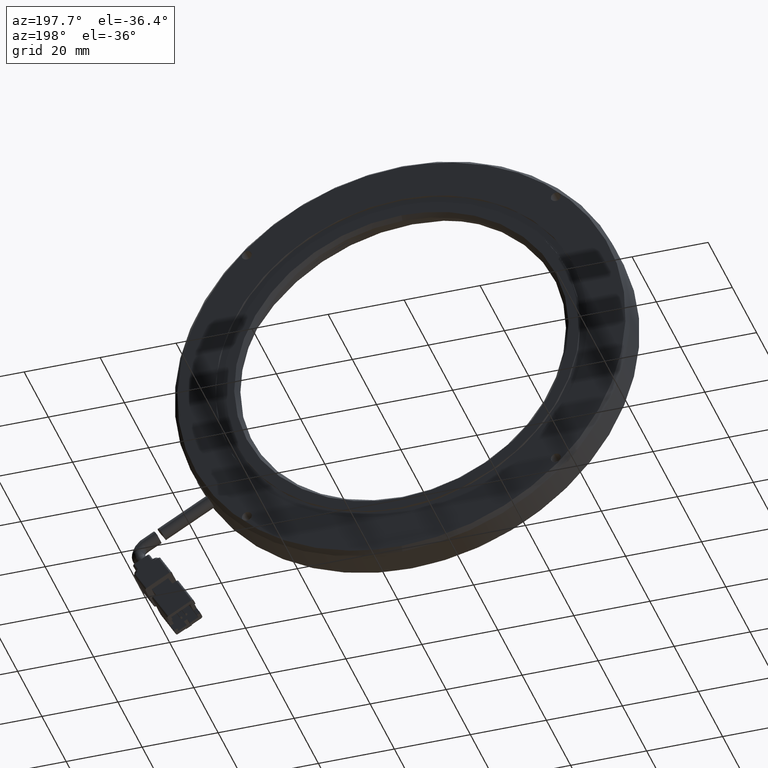
[diagram: clean part render]
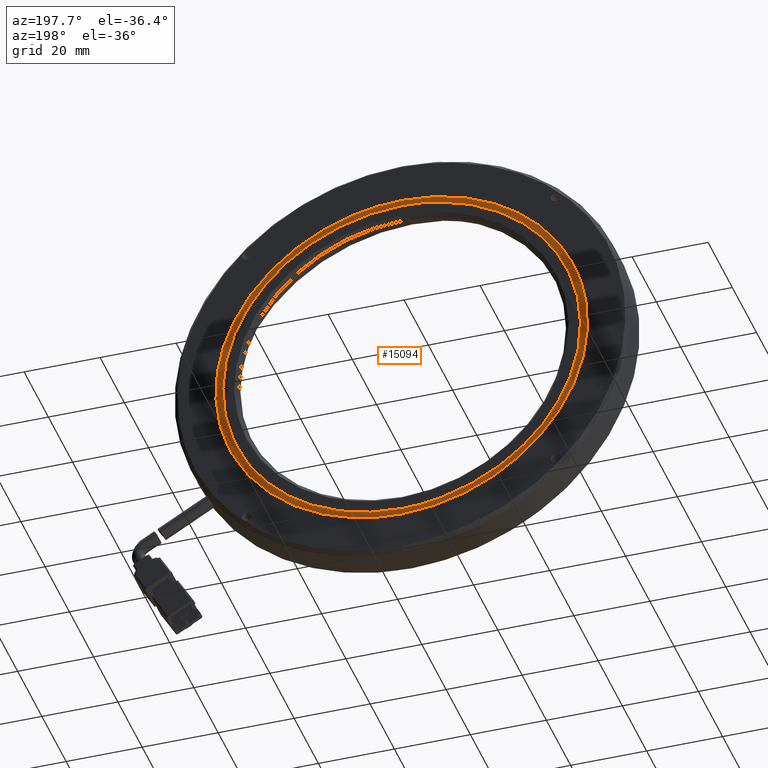
[diagram: same view with one face highlighted and labeled with its STEP entity id]
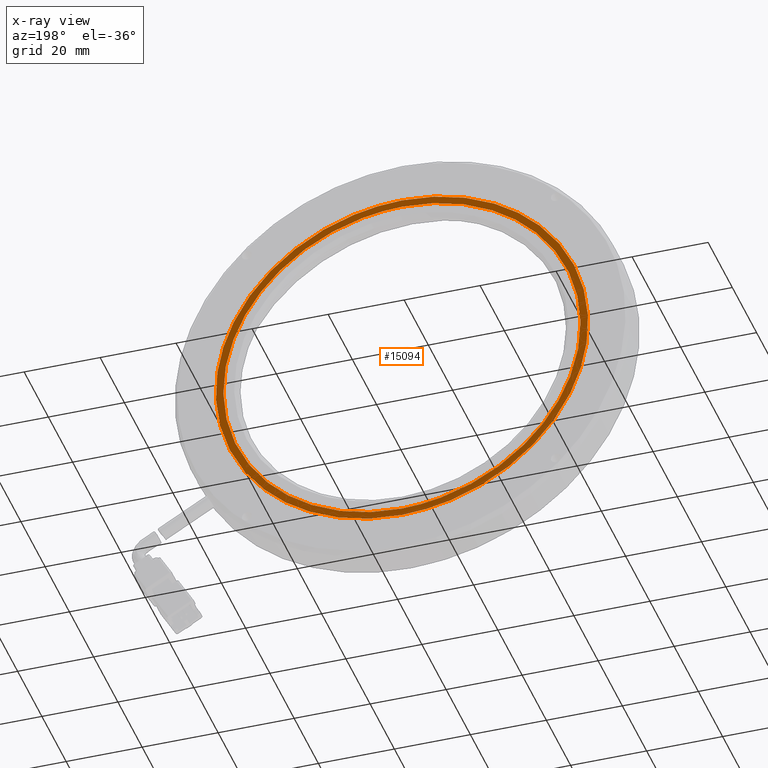
[diagram: x-ray of the same camera — body ghosted, the highlighted face saturated]
A machine part, auxiliary view. The second image highlights one B-rep face of the part: STEP entity #15094.
The next image is the same camera in x-ray: the body ghosted, the highlighted face saturated — about 0% of this face is hidden behind the body in this view.
In plain terms, the highlighted planar face has unit normal (0, 1, 0).
Its self-contained STEP definition (entity closure, byte-faithful):
#61 = CARTESIAN_POINT ( 'NONE',  ( 40.66767784981356500, 27.51889671361306000, 46.49737912490386500 ) ) ;
#192 = CARTESIAN_POINT ( 'NONE',  ( 9.456277853329057200, 27.51889671362000600, 3.077915830590420400 ) ) ;
#276 = CARTESIAN_POINT ( 'NONE',  ( 7.456245109548992100, 27.51889671361305600, -3.207042500524190500 ) ) ;
#402 = CARTESIAN_POINT ( 'NONE',  ( 41.31373469631389400, 27.51889671362000200, -44.60023567383711200 ) ) ;
#499 = CARTESIAN_POINT ( 'NONE',  ( 43.75139925258415000, 27.51889671361306000, -47.43281578560360100 ) ) ;
#546 = CARTESIAN_POINT ( 'NONE',  ( 72.24481236927884700, 27.51889671361306000, -46.49737912490645200 ) ) ;
#765 = CARTESIAN_POINT ( 'NONE',  ( 105.4562451095509800, 27.51889671361306000, 3.207042500524605300 ) ) ;
#983 = CARTESIAN_POINT ( 'NONE',  ( 69.16109096650770000, 27.51889671361306000, 47.43281578560577600 ) ) ;
#2592 = AXIS2_PLACEMENT_3D ( 'NONE', #50738, #10971, #26070 ) ;
#4429 = CARTESIAN_POINT ( 'NONE',  ( 80.00880659870372800, 27.51889671361999800, -40.78906153553690200 ) ) ;
#4642 = CARTESIAN_POINT ( 'NONE',  ( 101.9527235095320100, 27.51889671361999800, 12.18799409577771300 ) ) ;
#4866 = CARTESIAN_POINT ( 'NONE',  ( 62.59476272198268300, 27.51889671361999800, 46.62280358932043400 ) ) ;
#4962 = CARTESIAN_POINT ( 'NONE',  ( 35.62645694168345800, 27.51889671362000600, 42.24448809525107900 ) ) ;
#5059 = CARTESIAN_POINT ( 'NONE',  ( 31.89986207616116300, 27.51889671361306000, 42.52374835215917400 ) ) ;
#5181 = CARTESIAN_POINT ( 'NONE',  ( 9.758907151604930200, 27.51889671362000600, -6.150496173562206800 ) ) ;
#5276 = CARTESIAN_POINT ( 'NONE',  ( 9.023429323937220300, 27.51889671361305300, -12.70484585693154700 ) ) ;
#5395 = CARTESIAN_POINT ( 'NONE',  ( 48.79636742879720400, 27.51889671362001300, -46.39715839415502800 ) ) ;
#5476 = CARTESIAN_POINT ( 'NONE',  ( 53.24920260899038000, 27.51889671361305600, -48.99999999999867800 ) ) ;
#5510 = CARTESIAN_POINT ( 'NONE',  ( 81.01262814293298200, 27.51889671361306000, -42.52374835216255600 ) ) ;
#5744 = CARTESIAN_POINT ( 'NONE',  ( 103.8890608951623300, 27.51889671361306000, 12.70484585693319200 ) ) ;
#5957 = CARTESIAN_POINT ( 'NONE',  ( 59.66328761009992100, 27.51889671361306400, 48.99999999999933900 ) ) ;
#8734 = ORIENTED_EDGE ( 'NONE', *, *, #61319, .F. ) ;
#9426 = CARTESIAN_POINT ( 'NONE',  ( 87.51380188356937100, 27.51889671362000600, -35.41043435034634300 ) ) ;
#9666 = CARTESIAN_POINT ( 'NONE',  ( 98.70076174146440500, 27.51889671362000200, 20.82972782865672900 ) ) ;
#9871 = CARTESIAN_POINT ( 'NONE',  ( 57.99573682295272200, 27.51889671361999800, 46.99999999999999300 ) ) ;
#9965 = CARTESIAN_POINT ( 'NONE',  ( 27.78520469461282300, 27.51889671362000900, 37.36908202073644200 ) ) ;
#10053 = CARTESIAN_POINT ( 'NONE',  ( 24.07573433110353600, 27.51889671361305300, 36.91595377783402700 ) ) ;
#10175 = CARTESIAN_POINT ( 'NONE',  ( 11.85608568540133200, 27.51889671362000600, -15.14251481371481500 ) ) ;
#10266 = CARTESIAN_POINT ( 'NONE',  ( 12.41343004833678900, 27.51889671361306400, -21.71440911201678500 ) ) ;
#10391 = CARTESIAN_POINT ( 'NONE',  ( 53.38115153097748300, 27.51889671362000200, -46.92456071786440900 ) ) ;
#10527 = CARTESIAN_POINT ( 'NONE',  ( 88.83675588799233900, 27.51889671361306000, -36.91595377783767200 ) ) ;
#10742 = CARTESIAN_POINT ( 'NONE',  ( 100.4990601707618900, 27.51889671361306000, 21.71440911201941000 ) ) ;
#10971 = DIRECTION ( 'NONE',  ( 0.0000000000000000000, 1.000000000000000000, 0.0000000000000000000 ) ) ;
#11594 = FACE_OUTER_BOUND ( 'NONE', #43911, .T. ) ;
#14449 = CARTESIAN_POINT ( 'NONE',  ( 93.82527267907866500, 27.51889671362000600, -28.67100403106977800 ) ) ;
#14653 = CARTESIAN_POINT ( 'NONE',  ( 93.82536689048586700, 27.51889671361999800, 28.67098680203242400 ) ) ;
#14966 = CARTESIAN_POINT ( 'NONE',  ( 21.04576445201745800, 27.51889671362000200, 31.05760308121538700 ) ) ;
#15055 = CARTESIAN_POINT ( 'NONE',  ( 17.49597145606181000, 27.51889671361306000, 29.88949980253233500 ) ) ;
#15094 = ADVANCED_FACE ( 'NONE', ( #49492, #11594 ), #45803, .T. ) ;
#15173 = CARTESIAN_POINT ( 'NONE',  ( 15.66722333363150500, 27.51889671362000600, -23.55261510129537300 ) ) ;
#15275 = CARTESIAN_POINT ( 'NONE',  ( 17.49597145604328600, 27.51889671361306000, -29.88949980250820100 ) ) ;
#15313 = CARTESIAN_POINT ( 'NONE',  ( 59.66328761006953800, 27.51889671361306000, -49.00000000000132200 ) ) ;
#15397 = CARTESIAN_POINT ( 'NONE',  ( 56.45624510954842600, 27.51889671361583800, -47.00000000000000000 ) ) ;
#15522 = CARTESIAN_POINT ( 'NONE',  ( 95.41651876303562600, 27.51889671361306000, -29.88949980253570300 ) ) ;
#15737 = EDGE_CURVE ( 'NONE', #61275, #27216, #45737, .T. ) ;
#15745 = CARTESIAN_POINT ( 'NONE',  ( 95.41651876305414200, 27.51889671361306000, 29.88949980251154400 ) ) ;
#17045 = EDGE_CURVE ( 'NONE', #21459, #44284, #47286, .T. ) ;
#17073 = ORIENTED_EDGE ( 'NONE', *, *, #15737, .F. ) ;
#19404 = CARTESIAN_POINT ( 'NONE',  ( 98.70067270147217200, 27.51889671362001300, -20.82976310675847400 ) ) ;
#19626 = CARTESIAN_POINT ( 'NONE',  ( 87.51389764598131600, 27.51889671362000200, 35.41043583190586500 ) ) ;
#19793 = CARTESIAN_POINT ( 'NONE',  ( 50.04223940892697400, 27.51889671361306000, 48.68414169390934600 ) ) ;
#19919 = CARTESIAN_POINT ( 'NONE',  ( 15.66712912251664800, 27.51889671362000200, 23.55259787254638900 ) ) ;
#20013 = CARTESIAN_POINT ( 'NONE',  ( 12.41343004835024100, 27.51889671361306700, 21.71440911204407700 ) ) ;
#20131 = CARTESIAN_POINT ( 'NONE',  ( 21.04586021462260000, 27.51889671362000600, -31.05760159976756500 ) ) ;
#20219 = CARTESIAN_POINT ( 'NONE',  ( 24.07573433108066400, 27.51889671361305300, -36.91595377781397500 ) ) ;
#20483 = CARTESIAN_POINT ( 'NONE',  ( 100.4990601707484600, 27.51889671361306000, -21.71440911204670600 ) ) ;
#20699 = CARTESIAN_POINT ( 'NONE',  ( 88.83675588801521900, 27.51889671361306000, 36.91595377781762700 ) ) ;
#21459 = VERTEX_POINT ( 'NONE', #48501 ) ;
#22732 = CARTESIAN_POINT ( 'NONE',  ( 56.45624510954842600, 27.51889671361583800, -47.00000000000000000 ) ) ;
#24305 = CARTESIAN_POINT ( 'NONE',  ( 101.9526430628878600, 27.51889671362000600, -12.18804606646948600 ) ) ;
#24511 = CARTESIAN_POINT ( 'NONE',  ( 80.00890023196265600, 27.51889671361999800, 40.78908167101518200 ) ) ;
#24700 = CARTESIAN_POINT ( 'NONE',  ( 56.45624510956227500, 27.51889671361583800, 49.00000000000000000 ) ) ;
#24823 = CARTESIAN_POINT ( 'NONE',  ( 11.85600943564175000, 27.51889671362001300, 15.14251041302163800 ) ) ;
#24914 = CARTESIAN_POINT ( 'NONE',  ( 9.023429323945098400, 27.51889671361306000, 12.70484585696094000 ) ) ;
#25038 = CARTESIAN_POINT ( 'NONE',  ( 27.78529832840038700, 27.51889671362000600, -37.36906188559198200 ) ) ;
#25134 = CARTESIAN_POINT ( 'NONE',  ( 31.89986207613482700, 27.51889671361306400, -42.52374835214396100 ) ) ;
#25392 = CARTESIAN_POINT ( 'NONE',  ( 103.8890608951544900, 27.51889671361306000, -12.70484585696259000 ) ) ;
#25608 = CARTESIAN_POINT ( 'NONE',  ( 81.01262814295930100, 27.51889671361306000, 42.52374835214733700 ) ) ;
#26070 = DIRECTION ( 'NONE',  ( 0.0000000000000000000, 0.0000000000000000000, -1.000000000000000000 ) ) ;
#27216 = VERTEX_POINT ( 'NONE', #55322 ) ;
#29077 = CARTESIAN_POINT ( 'NONE',  ( 68.64430395200231800, 27.51889671362000600, -45.49646218333978700 ) ) ;
#29286 = CARTESIAN_POINT ( 'NONE',  ( 103.4562123657709400, 27.51889671362000600, -3.077915830238200400 ) ) ;
#29494 = CARTESIAN_POINT ( 'NONE',  ( 71.59878749029857700, 27.51889671362000200, 44.60022597617826500 ) ) ;
#29588 = CARTESIAN_POINT ( 'NONE',  ( 56.45624510956202600, 27.51889671361583800, 47.00000000000000000 ) ) ;
#29694 = CARTESIAN_POINT ( 'NONE',  ( 43.75139925261356000, 27.51889671361306400, 47.43281578561143900 ) ) ;
#29815 = CARTESIAN_POINT ( 'NONE',  ( 9.758826704821494500, 27.51889671362000900, 6.150444202228658100 ) ) ;
#29907 = CARTESIAN_POINT ( 'NONE',  ( 7.456245109550983400, 27.51889671361306000, 3.207042500554549800 ) ) ;
#30038 = CARTESIAN_POINT ( 'NONE',  ( 35.62651288046540500, 27.51889671362000600, -42.24444038222292600 ) ) ;
#30050 = B_SPLINE_CURVE_WITH_KNOTS ( 'NONE', 3,
 ( #44914, #15313, #59811, #30170, #546, #35169, #5510, #40132, #10527, #45140, #15522, #50086, #20483, #55088, #25392, #60036, #30401, #765, #35394, #5744, #40347, #10742, #45357, #15745, #50288, #20699, #55307, #25608, #60248, #30619, #983, #35588, #5957, #40580 ),
 .UNSPECIFIED., .F., .F.,
 ( 4, 2, 2, 2, 2, 2, 2, 2, 2, 2, 2, 2, 2, 2, 2, 2, 4 ),
 ( 0.0000000000000000000, 0.06250000000000000000, 0.1250000000000000000, 0.1875000000000000000, 0.2500000000000000000, 0.3125000000000000000, 0.3750000000000000000, 0.4375000000000000000, 0.5000000000000000000, 0.5625000000000000000, 0.6250000000000000000, 0.6875000000000000000, 0.7500000000000000000, 0.8125000000000000000, 0.8750000000000000000, 0.9375000000000000000, 1.000000000000000000 ),
 .UNSPECIFIED. ) ;
#30132 = CARTESIAN_POINT ( 'NONE',  ( 40.66767784978473800, 27.51889671361306400, -46.49737912489408800 ) ) ;
#30170 = CARTESIAN_POINT ( 'NONE',  ( 69.16109096647828400, 27.51889671361306000, -47.43281578561365600 ) ) ;
#30401 = CARTESIAN_POINT ( 'NONE',  ( 105.4562451095489900, 27.51889671361306000, -3.207042500554977000 ) ) ;
#30619 = CARTESIAN_POINT ( 'NONE',  ( 72.24481236930765200, 27.51889671361306000, 46.49737912489665300 ) ) ;
#33851 = EDGE_LOOP ( 'NONE', ( #39241, #36175 ) ) ;
#34073 = CARTESIAN_POINT ( 'NONE',  ( 77.28603327703383700, 27.51889671361999800, -42.24448809541323900 ) ) ;
#34295 = CARTESIAN_POINT ( 'NONE',  ( 103.1535830674770600, 27.51889671362000600, 6.150496173710954500 ) ) ;
#34503 = CARTESIAN_POINT ( 'NONE',  ( 64.11612279058660100, 27.51889671361999500, 46.39715839412770000 ) ) ;
#34601 = CARTESIAN_POINT ( 'NONE',  ( 41.31379063511376900, 27.51889671362000600, 44.60018796081634900 ) ) ;
#34697 = CARTESIAN_POINT ( 'NONE',  ( 34.74183599752871000, 27.51889671361305600, 44.04281506121096600 ) ) ;
#34815 = CARTESIAN_POINT ( 'NONE',  ( 9.456212365770934300, 27.51889671362000200, -3.077915830580750800 ) ) ;
#34911 = CARTESIAN_POINT ( 'NONE',  ( 7.772103415639984200, 27.51889671361306000, -6.414005700617982700 ) ) ;
#35032 = CARTESIAN_POINT ( 'NONE',  ( 44.26826506677975500, 27.51889671362000900, -45.49640774854508200 ) ) ;
#35127 = CARTESIAN_POINT ( 'NONE',  ( 50.04223940889683300, 27.51889671361306000, -48.68414169390537400 ) ) ;
#35169 = CARTESIAN_POINT ( 'NONE',  ( 78.17065422156488800, 27.51889671361306400, -44.04281506121417800 ) ) ;
#35394 = CARTESIAN_POINT ( 'NONE',  ( 105.1403868034599300, 27.51889671361306000, 6.414005700618829100 ) ) ;
#35588 = CARTESIAN_POINT ( 'NONE',  ( 62.87025081019398700, 27.51889671361306000, 48.68414169390661100 ) ) ;
#36175 = ORIENTED_EDGE ( 'NONE', *, *, #47440, .T. ) ;
#38820 = CARTESIAN_POINT ( 'NONE',  ( 56.45624510954842600, 27.51889671361583800, -47.00000000000000000 ) ) ;
#39038 = CARTESIAN_POINT ( 'NONE',  ( 85.12728552420962600, 27.51889671362000200, -37.36908202092188000 ) ) ;
#39241 = ORIENTED_EDGE ( 'NONE', *, *, #17045, .T. ) ;
#39258 = CARTESIAN_POINT ( 'NONE',  ( 101.0564045337067500, 27.51889671362000600, 15.14251481363702800 ) ) ;
#39466 = CARTESIAN_POINT ( 'NONE',  ( 59.53133868811592300, 27.51889671362000200, 46.92456071786409000 ) ) ;
#39556 = CARTESIAN_POINT ( 'NONE',  ( 32.90368362065767400, 27.51889671362000600, 40.78906153571158200 ) ) ;
#39656 = CARTESIAN_POINT ( 'NONE',  ( 26.56674530703778500, 27.51889671361306000, 38.96027365350362700 ) ) ;
#39779 = CARTESIAN_POINT ( 'NONE',  ( 10.95976670958973300, 27.51889671362000200, -12.18799409594552700 ) ) ;
#39866 = CARTESIAN_POINT ( 'NONE',  ( 9.958865984644525300, 27.51889671361306000, -15.78856725973168000 ) ) ;
#39996 = CARTESIAN_POINT ( 'NONE',  ( 50.31772749714320300, 27.51889671361999800, -46.62280358932205400 ) ) ;
#40098 = CARTESIAN_POINT ( 'NONE',  ( 56.45624510954405700, 27.51889671361583800, -49.00000000000000700 ) ) ;
#40132 = CARTESIAN_POINT ( 'NONE',  ( 86.34574491205752600, 27.51889671361306400, -38.96027365350723700 ) ) ;
#40347 = CARTESIAN_POINT ( 'NONE',  ( 102.9536242344548100, 27.51889671361306000, 15.78856725973365700 ) ) ;
#40580 = CARTESIAN_POINT ( 'NONE',  ( 56.45624510956227500, 27.51889671361583800, 49.00000000000000000 ) ) ;
#43805 = CARTESIAN_POINT ( 'NONE',  ( 59.53452685473021700, 27.51889671362000900, -47.00000000000000700 ) ) ;
#43911 = EDGE_LOOP ( 'NONE', ( #17073, #8734 ) ) ;
#44027 = CARTESIAN_POINT ( 'NONE',  ( 91.86672576704202700, 27.51889671362000200, -31.05760308121315600 ) ) ;
#44249 = CARTESIAN_POINT ( 'NONE',  ( 97.24526688506752200, 27.51889671362000600, 23.55261510178897700 ) ) ;
#44284 = VERTEX_POINT ( 'NONE', #22732 ) ;
#44353 = CARTESIAN_POINT ( 'NONE',  ( 50.30581368282661000, 27.51889671362000200, 46.69735417465718500 ) ) ;
#44470 = CARTESIAN_POINT ( 'NONE',  ( 56.45624510956202600, 27.51889671361583800, 47.00000000000000000 ) ) ;
#44571 = CARTESIAN_POINT ( 'NONE',  ( 25.39868833555738400, 27.51889671362001300, 35.41043435033039100 ) ) ;
#44658 = CARTESIAN_POINT ( 'NONE',  ( 19.54029133173267100, 27.51889671361306400, 32.38051077846551400 ) ) ;
#44699 = CARTESIAN_POINT ( 'NONE',  ( 56.45624510956227500, 27.51889671361583800, 49.00000000000000000 ) ) ;
#44779 = CARTESIAN_POINT ( 'NONE',  ( 14.21172847763491600, 27.51889671362000200, -20.82972782859687700 ) ) ;
#44876 = CARTESIAN_POINT ( 'NONE',  ( 13.93249675738829500, 27.51889671361306000, -24.55638303338444600 ) ) ;
#44914 = CARTESIAN_POINT ( 'NONE',  ( 56.45624510954405700, 27.51889671361583800, -49.00000000000000700 ) ) ;
#44994 = CARTESIAN_POINT ( 'NONE',  ( 54.91675339614072000, 27.51889671362000200, -47.00000000000001400 ) ) ;
#45140 = CARTESIAN_POINT ( 'NONE',  ( 93.37219888736424900, 27.51889671361306400, -32.38051077846901600 ) ) ;
#45357 = CARTESIAN_POINT ( 'NONE',  ( 98.97999346171003800, 27.51889671361306000, 24.55638303338737000 ) ) ;
#45737 = B_SPLINE_CURVE_WITH_KNOTS ( 'NONE', 3,
 ( #24700, #54402, #19793, #29694, #61, #34697, #5059, #39656, #10053, #44658, #15055, #49624, #20013, #54618, #24914, #59581, #29907, #276, #34911, #5276, #39866, #10266, #44876, #15275, #49827, #20219, #54836, #25134, #59773, #30132, #499, #35127, #5476, #40098 ),
 .UNSPECIFIED., .F., .F.,
 ( 4, 2, 2, 2, 2, 2, 2, 2, 2, 2, 2, 2, 2, 2, 2, 2, 4 ),
 ( 0.0000000000000000000, 0.06249999999999990300, 0.1249999999999998100, 0.1874999999999997200, 0.2499999999999996100, 0.3124999999999996100, 0.3749999999999995600, 0.4374999999999995600, 0.4999999999999995600, 0.5624999999999995600, 0.6249999999999994400, 0.6874999999999994400, 0.7499999999999994400, 0.8124999999999996700, 0.8749999999999997800, 0.9374999999999998900, 1.000000000000000000 ),
 .UNSPECIFIED. ) ;
#45803 = PLANE ( 'NONE',  #2592 ) ;
#47286 = B_SPLINE_CURVE_WITH_KNOTS ( 'NONE', 3,
 ( #29588, #54314, #44353, #64241, #34601, #4962, #39556, #9965, #44571, #14966, #49539, #19919, #54530, #24823, #59478, #29815, #192, #34815, #5181, #39779, #10175, #44779, #15173, #49738, #20131, #54748, #25038, #59690, #30038, #402, #35032, #5395, #39996, #10391, #44994, #15397 ),
 .UNSPECIFIED., .F., .F.,
 ( 4, 2, 2, 2, 2, 2, 2, 2, 2, 2, 2, 2, 2, 2, 2, 2, 2, 4 ),
 ( 0.0000000000000000000, 0.06249999999999990300, 0.1249999999999998100, 0.1874999999999997200, 0.2499999999999996700, 0.3124999999999996700, 0.3749999999999996700, 0.4374999999999997200, 0.4999999999999996700, 0.5624999999999996700, 0.6249999999999996700, 0.6874999999999996700, 0.7499999999999996700, 0.8124999999999997800, 0.8749999999999997800, 0.9374999999999997800, 0.9687499999999997800, 1.000000000000000000 ),
 .UNSPECIFIED. ) ;
#47440 = EDGE_CURVE ( 'NONE', #44284, #21459, #48235, .T. ) ;
#48235 = B_SPLINE_CURVE_WITH_KNOTS ( 'NONE', 3,
 ( #38820, #43805, #58747, #29077, #63700, #34073, #4429, #39038, #9426, #44027, #14449, #48985, #19404, #54017, #24305, #58952, #29286, #63922, #34295, #4642, #39258, #9666, #44249, #14653, #49216, #19626, #54212, #24511, #59166, #29494, #64140, #34503, #4866, #39466, #9871, #44470 ),
 .UNSPECIFIED., .F., .F.,
 ( 4, 2, 2, 2, 2, 2, 2, 2, 2, 2, 2, 2, 2, 2, 2, 2, 2, 4 ),
 ( 0.0000000000000000000, 0.06249999999999998600, 0.1249999999999999700, 0.1874999999999999400, 0.2499999999999999400, 0.3124999999999999400, 0.3749999999999998900, 0.4374999999999998900, 0.4999999999999998900, 0.5624999999999998900, 0.6249999999999998900, 0.6874999999999998900, 0.7499999999999997800, 0.8124999999999997800, 0.8749999999999997800, 0.9374999999999997800, 0.9687499999999998900, 1.000000000000000000 ),
 .UNSPECIFIED. ) ;
#48501 = CARTESIAN_POINT ( 'NONE',  ( 56.45624510956202600, 27.51889671361583800, 47.00000000000000000 ) ) ;
#48985 = CARTESIAN_POINT ( 'NONE',  ( 97.24536109644233800, 27.51889671362000200, -23.55259787280010300 ) ) ;
#49216 = CARTESIAN_POINT ( 'NONE',  ( 91.86663000467129300, 27.51889671362000600, 31.05760159961245000 ) ) ;
#49492 = FACE_BOUND ( 'NONE', #33851, .T. ) ;
#49539 = CARTESIAN_POINT ( 'NONE',  ( 19.08721754015151000, 27.51889671362000600, 28.67100403130736200 ) ) ;
#49624 = CARTESIAN_POINT ( 'NONE',  ( 13.93249675740351500, 27.51889671361306400, 24.55638303341079600 ) ) ;
#49738 = CARTESIAN_POINT ( 'NONE',  ( 19.08712332902588200, 27.51889671362000200, -28.67098680254222400 ) ) ;
#49827 = CARTESIAN_POINT ( 'NONE',  ( 19.54029133171260900, 27.51889671361306000, -32.38051077844264800 ) ) ;
#50086 = CARTESIAN_POINT ( 'NONE',  ( 98.97999346169478900, 27.51889671361306400, -24.55638303341373400 ) ) ;
#50288 = CARTESIAN_POINT ( 'NONE',  ( 93.37219888738432900, 27.51889671361306000, 32.38051077844615100 ) ) ;
#50738 = CARTESIAN_POINT ( 'NONE',  ( 107.4162171813000300, 27.51889671362000200, 50.96000000000000800 ) ) ;
#54017 = CARTESIAN_POINT ( 'NONE',  ( 101.0564935736767300, 27.51889671362000200, -15.14247953558911400 ) ) ;
#54212 = CARTESIAN_POINT ( 'NONE',  ( 85.12719189099912900, 27.51889671362000600, 37.36906188541124900 ) ) ;
#54314 = CARTESIAN_POINT ( 'NONE',  ( 53.37796336458985300, 27.51889671362000600, 47.00000000000000000 ) ) ;
#54402 = CARTESIAN_POINT ( 'NONE',  ( 53.24920260902074900, 27.51889671361306000, 49.00000000000067500 ) ) ;
#54530 = CARTESIAN_POINT ( 'NONE',  ( 14.21180472740193100, 27.51889671362000900, 20.82973222930801400 ) ) ;
#54618 = CARTESIAN_POINT ( 'NONE',  ( 9.958865984654302400, 27.51889671361306000, 15.78856725976048700 ) ) ;
#54748 = CARTESIAN_POINT ( 'NONE',  ( 25.39859257293850800, 27.51889671362000600, -35.41043583176452400 ) ) ;
#54836 = CARTESIAN_POINT ( 'NONE',  ( 26.56674530701363700, 27.51889671361305300, -38.96027365348509600 ) ) ;
#55088 = CARTESIAN_POINT ( 'NONE',  ( 102.9536242344450300, 27.51889671361306400, -15.78856725976246800 ) ) ;
#55307 = CARTESIAN_POINT ( 'NONE',  ( 86.34574491208165600, 27.51889671361306000, 38.96027365348872700 ) ) ;
#55322 = CARTESIAN_POINT ( 'NONE',  ( 56.45624510954405700, 27.51889671361583800, -49.00000000000000700 ) ) ;
#58747 = CARTESIAN_POINT ( 'NONE',  ( 62.60667653657689200, 27.51889671362000600, -46.69735417457119600 ) ) ;
#58952 = CARTESIAN_POINT ( 'NONE',  ( 103.1536635141098500, 27.51889671361999800, -6.150444203076330200 ) ) ;
#59166 = CARTESIAN_POINT ( 'NONE',  ( 77.28594537114003100, 27.51889671362000600, 42.24445007987433300 ) ) ;
#59478 = CARTESIAN_POINT ( 'NONE',  ( 10.95984715637694500, 27.51889671361999800, 12.18804606729813700 ) ) ;
#59581 = CARTESIAN_POINT ( 'NONE',  ( 7.772103415643961500, 27.51889671361306000, 6.414005700648144300 ) ) ;
#59690 = CARTESIAN_POINT ( 'NONE',  ( 32.90358998685395200, 27.51889671361999800, -40.78908167084524900 ) ) ;
#59773 = CARTESIAN_POINT ( 'NONE',  ( 34.74183599750140400, 27.51889671361306000, -44.04281506119751600 ) ) ;
#59811 = CARTESIAN_POINT ( 'NONE',  ( 62.87025081016382400, 27.51889671361306400, -48.68414169391056800 ) ) ;
#60036 = CARTESIAN_POINT ( 'NONE',  ( 105.1403868034559300, 27.51889671361306400, -6.414005700649003200 ) ) ;
#60248 = CARTESIAN_POINT ( 'NONE',  ( 78.17065422159218700, 27.51889671361306000, 44.04281506120071300 ) ) ;
#61275 = VERTEX_POINT ( 'NONE', #44699 ) ;
#61319 = EDGE_CURVE ( 'NONE', #27216, #61275, #30050, .T. ) ;
#63700 = CARTESIAN_POINT ( 'NONE',  ( 71.59869958435092500, 27.51889671362000600, -44.60018796066163600 ) ) ;
#63922 = CARTESIAN_POINT ( 'NONE',  ( 103.4562778533290400, 27.51889671361999800, 3.077915830209070800 ) ) ;
#64140 = CARTESIAN_POINT ( 'NONE',  ( 68.64422515178125600, 27.51889671362000900, 45.49640774859408100 ) ) ;
#64241 = CARTESIAN_POINT ( 'NONE',  ( 44.26818626677518200, 27.51889671362000200, 45.49646218325003100 ) ) ;